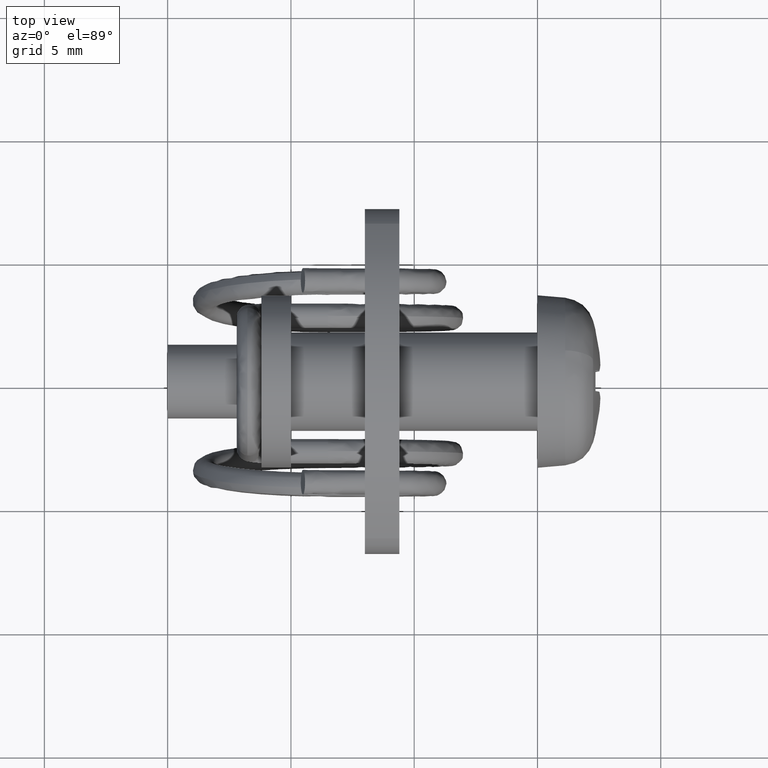
[diagram: clean part render]
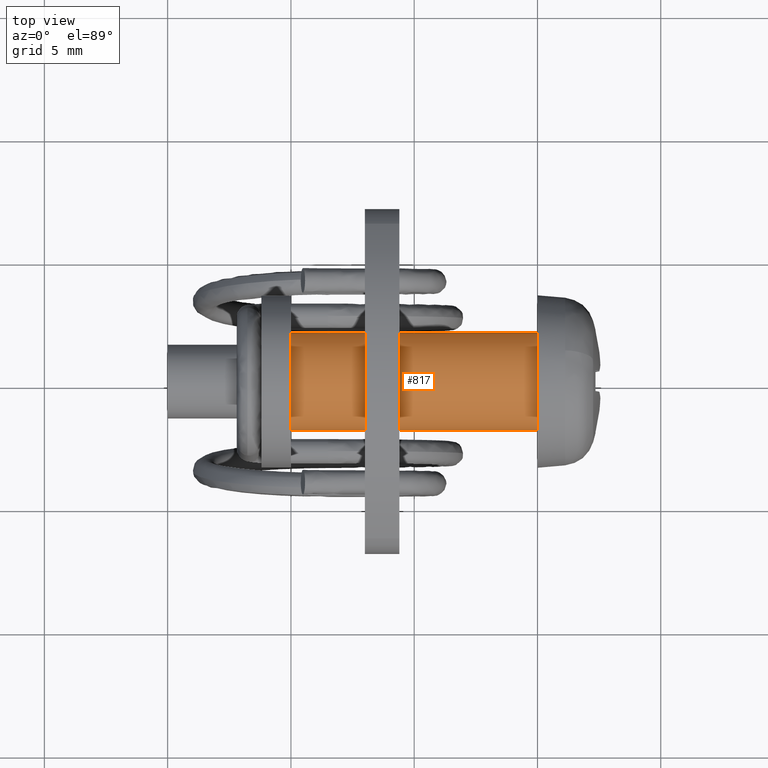
[diagram: same view with one face highlighted and labeled with its STEP entity id]
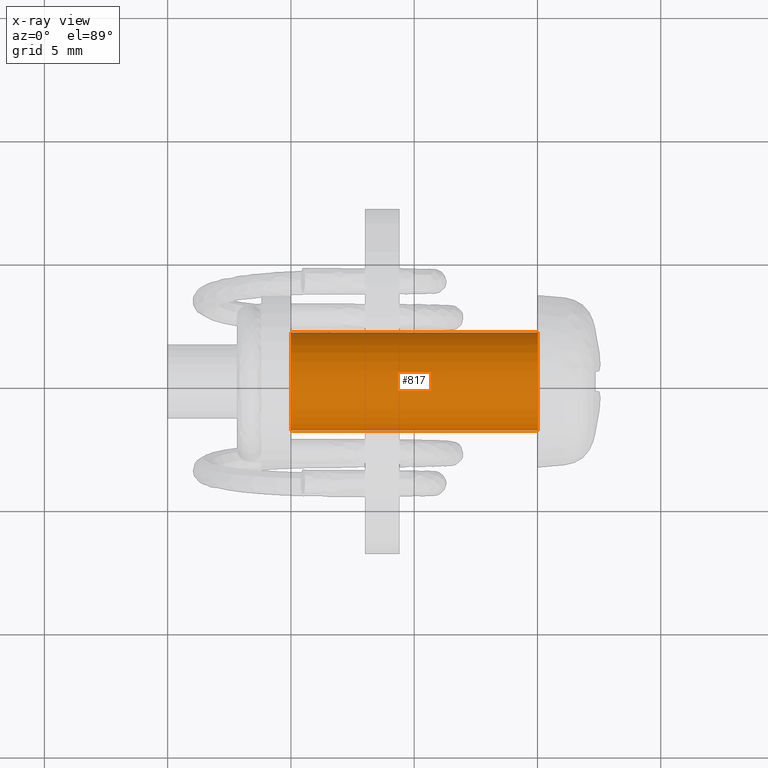
[diagram: x-ray of the same camera — body ghosted, the highlighted face saturated]
A machine part, top view. The second image highlights one B-rep face of the part: STEP entity #817.
The next image is the same camera in x-ray: the body ghosted, the highlighted face saturated — about 0% of this face is hidden behind the body in this view.
In plain terms, the highlighted face is a freeform B-spline surface patch.
Its self-contained STEP definition (entity closure, byte-faithful):
#654=CARTESIAN_POINT('',(-9.999999999999700,1.986019052724380,0.236068469338358));
#655=VERTEX_POINT('',#654);
#673=CARTESIAN_POINT('',(-1.084675E-016,1.986019052724380,0.236068469338358));
#674=VERTEX_POINT('',#673);
#675=CARTESIAN_POINT('',(-1.084675E-016,1.986019052724380,0.236068469338358));
#676=CARTESIAN_POINT('',(-9.999999999999700,1.986019052724380,0.236068469338358));
#677=QUASI_UNIFORM_CURVE('',1,(#675,#676),.UNSPECIFIED.,.F.,.U.);
#678=EDGE_CURVE('',#674,#655,#677,.T.);
#697=CARTESIAN_POINT('',(-6.661338E-016,-1.996269638936529,-0.122096390854701));
#698=VERTEX_POINT('',#697);
#712=CARTESIAN_POINT('',(-9.999999999999702,-1.996269639463543,-0.122096382237994));
#713=VERTEX_POINT('',#712);
#714=CARTESIAN_POINT('',(-6.661338E-016,-1.996269638936529,-0.122096390854701));
#715=CARTESIAN_POINT('',(-9.999999999999702,-1.996269639463543,-0.122096382237994));
#716=QUASI_UNIFORM_CURVE('',1,(#714,#715),.UNSPECIFIED.,.F.,.U.);
#717=EDGE_CURVE('',#698,#713,#716,.T.);
#735=CARTESIAN_POINT('',(0.249999999999992,-1.996269596843733,-0.122097079069714));
#736=CARTESIAN_POINT('',(0.249999999999992,-2.118366675913447,1.874172517774020));
#737=CARTESIAN_POINT('',(0.249999999999992,-0.122097079069714,1.996269596843733));
#738=CARTESIAN_POINT('',(0.249999999999992,1.763086981679002,2.111572393465055));
#739=CARTESIAN_POINT('',(0.249999999999992,1.986019052727332,0.236068469313517));
#740=CARTESIAN_POINT('',(-10.256249999999691,-1.996269596843733,-0.122097079069714));
#741=CARTESIAN_POINT('',(-10.256249999999694,-2.118366675913447,1.874172517774020));
#742=CARTESIAN_POINT('',(-10.256249999999691,-0.122097079069714,1.996269596843733));
#743=CARTESIAN_POINT('',(-10.256249999999694,1.763086981679002,2.111572393465055));
#744=CARTESIAN_POINT('',(-10.256249999999694,1.986019052727332,0.236068469313517));
#752=(BOUNDED_SURFACE()B_SPLINE_SURFACE(2,1,((#735,#740),(#736,#741),(#737,#742),(#738,#743),(#739,#744)),.UNSPECIFIED.,.F.,.F.,.U.)B_SPLINE_SURFACE_WITH_KNOTS((3,2,3),(2,2),(0.0,3.313708498984759,6.494868658010128),(0.0,10.506249999999691),.UNSPECIFIED.)GEOMETRIC_REPRESENTATION_ITEM()RATIONAL_B_SPLINE_SURFACE(((1.0,1.0),(0.707106781186548,0.707106781186548),(1.0,1.0),(0.718822509939086,0.718822509939086),(0.977505800795127,0.977505800795127)))REPRESENTATION_ITEM('')SURFACE());
#753=CARTESIAN_POINT('',(-9.999999999999700,0.0,2.0));
#754=VERTEX_POINT('',#753);
#755=CARTESIAN_POINT('',(-9.999999999999700,0.0,2.0));
#756=CARTESIAN_POINT('',(-9.999999999999698,1.776349051857985,2.000000000000000));
#757=CARTESIAN_POINT('',(-9.999999999999700,1.986019052724380,0.236068469338358));
#765=(BOUNDED_CURVE()B_SPLINE_CURVE(2,(#755,#756,#757),.UNSPECIFIED.,.F.,.U.)B_SPLINE_CURVE_WITH_KNOTS((3,3),(0.0,0.229562473511417),.UNSPECIFIED.)CURVE()GEOMETRIC_REPRESENTATION_ITEM()RATIONAL_B_SPLINE_CURVE((1.0,0.731050832857853,0.956026754179599))REPRESENTATION_ITEM(''));
#766=EDGE_CURVE('',#754,#655,#765,.T.);
#767=ORIENTED_EDGE('',*,*,#766,.F.);
#768=CARTESIAN_POINT('',(-9.999999999999702,-1.996269639463544,-0.122096382237994));
#769=CARTESIAN_POINT('',(-9.999999999999700,-2.0,-0.061104827811632));
#770=CARTESIAN_POINT('',(-9.999999999999700,-2.0,0.0));
#771=CARTESIAN_POINT('',(-9.999999999999700,-2.000000000000000,2.000000000000000));
#772=CARTESIAN_POINT('',(-9.999999999999700,0.0,2.0));
#780=(BOUNDED_CURVE()B_SPLINE_CURVE(2,(#768,#769,#770,#771,#772),.UNSPECIFIED.,.F.,.U.)B_SPLINE_CURVE_WITH_KNOTS((3,2,3),(0.739333082702742,0.750000000000000,1.0),.UNSPECIFIED.)CURVE()GEOMETRIC_REPRESENTATION_ITEM()RATIONAL_B_SPLINE_CURVE((0.976072299843706,0.987502929031956,1.0,0.707106781186548,1.0))REPRESENTATION_ITEM(''));
#781=EDGE_CURVE('',#713,#754,#780,.T.);
#782=ORIENTED_EDGE('',*,*,#781,.F.);
#783=ORIENTED_EDGE('',*,*,#717,.F.);
#784=CARTESIAN_POINT('',(-4.440892E-016,0.0,2.0));
#785=VERTEX_POINT('',#784);
#786=CARTESIAN_POINT('',(-6.661338E-016,-1.996269638936529,-0.122096390854701));
#787=CARTESIAN_POINT('',(-4.440892E-016,-2.000000000000000,-0.061104836452499));
#788=CARTESIAN_POINT('',(-4.440892E-016,-2.0,0.0));
#789=CARTESIAN_POINT('',(-4.440892E-016,-2.000000000000000,2.000000000000000));
#790=CARTESIAN_POINT('',(-4.440892E-016,0.0,2.0));
#798=(BOUNDED_CURVE()B_SPLINE_CURVE(2,(#786,#787,#788,#789,#790),.UNSPECIFIED.,.F.,.U.)B_SPLINE_CURVE_WITH_KNOTS((3,2,3),(0.739333081213178,0.750000000000000,1.0),.UNSPECIFIED.)CURVE()GEOMETRIC_REPRESENTATION_ITEM()RATIONAL_B_SPLINE_CURVE((0.976072296651283,0.987502927286824,1.0,0.707106781186548,1.0))REPRESENTATION_ITEM(''));
#799=EDGE_CURVE('',#698,#785,#798,.T.);
#800=ORIENTED_EDGE('',*,*,#799,.T.);
#801=CARTESIAN_POINT('',(-4.440892E-016,0.0,2.0));
#802=CARTESIAN_POINT('',(-4.440892E-016,1.776349051857985,2.000000000000000));
#803=CARTESIAN_POINT('',(-1.084675E-016,1.986019052724380,0.236068469338358));
#811=(BOUNDED_CURVE()B_SPLINE_CURVE(2,(#801,#802,#803),.UNSPECIFIED.,.F.,.U.)B_SPLINE_CURVE_WITH_KNOTS((3,3),(0.0,0.229562473511417),.UNSPECIFIED.)CURVE()GEOMETRIC_REPRESENTATION_ITEM()RATIONAL_B_SPLINE_CURVE((1.0,0.731050832857853,0.956026754179599))REPRESENTATION_ITEM(''));
#812=EDGE_CURVE('',#785,#674,#811,.T.);
#813=ORIENTED_EDGE('',*,*,#812,.T.);
#814=ORIENTED_EDGE('',*,*,#678,.T.);
#815=EDGE_LOOP('',(#767,#782,#783,#800,#813,#814));
#816=FACE_OUTER_BOUND('',#815,.T.);
#817=ADVANCED_FACE('',(#816),#752,.T.);